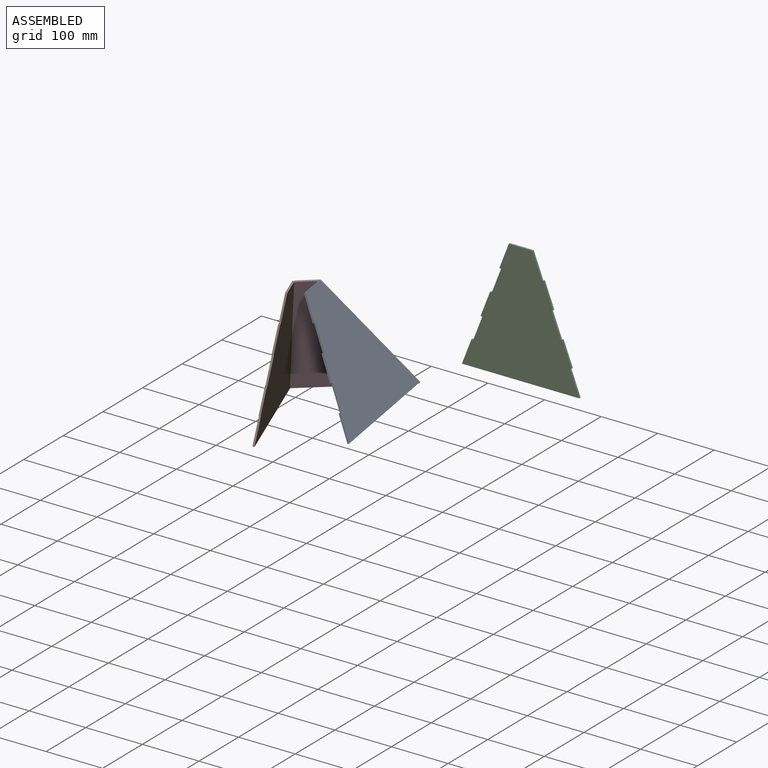
[diagram: assembled view]
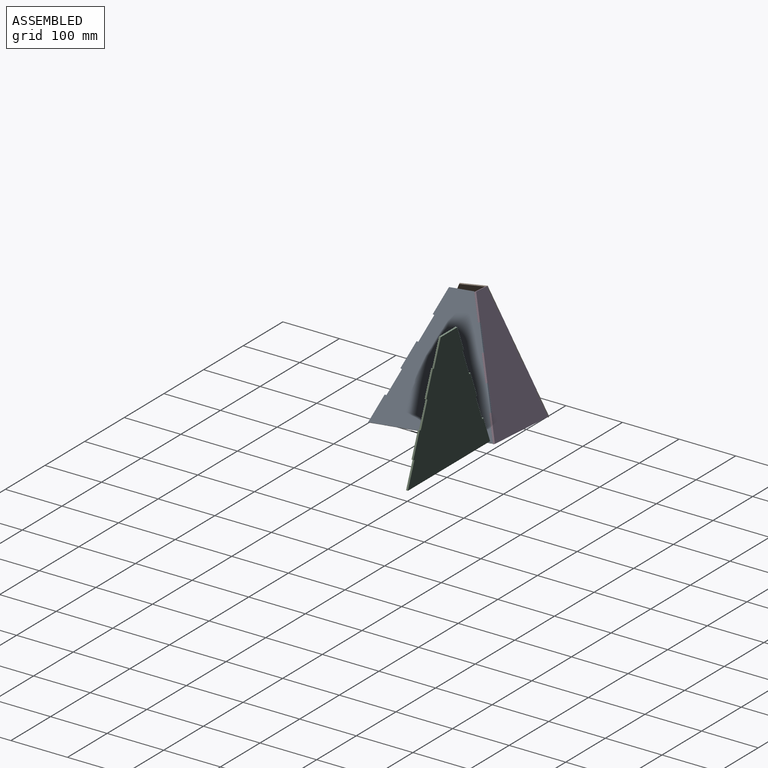
[diagram: assembled view, second angle]
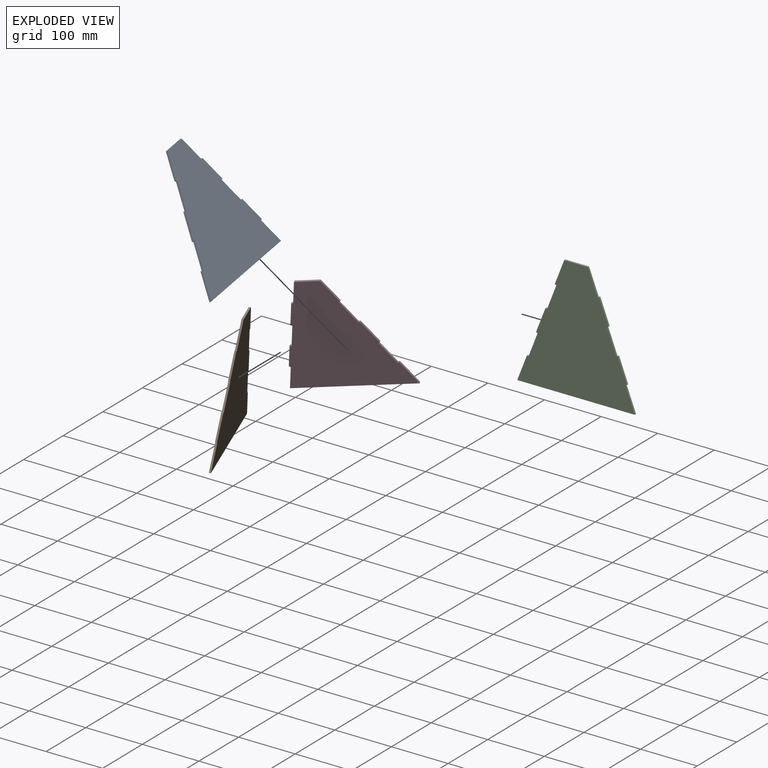
[diagram: exploded view]
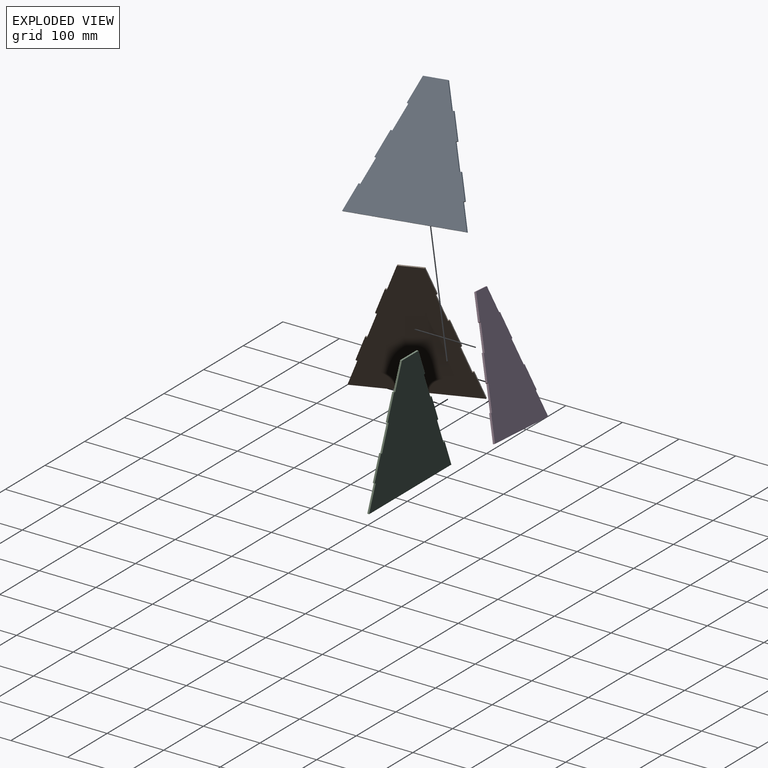
[diagram: exploded view, second angle]
ASSEMBLY  parts=4 mates=2
PART A: 22 faces, bbox 207.5x3.2x213.5 mm
  f0: plane 3.18x2.76mm, normal (-0.36,0,0.93), area 9.4mm2, adj f1,f19,f20,f21
  f1: plane 42.7x16.57mm, normal (0.93,0,0.36), area 145.4mm2, adj f0,f2,f20,f21
  f2: plane 3.18x2.76mm, normal (0.36,0,-0.93), area 9.4mm2, adj f1,f3,f20,f21
  f3: plane 42.7x16.57mm, normal (0.93,0,0.36), area 145.4mm2, adj f2,f4,f20,f21
  f4: plane 3.18x2.76mm, normal (-0.36,0,0.93), area 9.4mm2, adj f3,f5,f20,f21
  f5: plane 43.77x16.99mm, normal (0.93,0,0.36), area 149.1mm2, adj f4,f6,f20,f21
  f6: plane 41.83x3.18mm, normal (0,0,1), area 132.8mm2, adj f5,f7,f20,f21
  f7: plane 42.7x16.57mm, normal (-0.93,0,0.36), area 145.4mm2, adj f6,f8,f20,f21
  f8: plane 3.18x2.76mm, normal (-0.36,0,-0.93), area 9.4mm2, adj f7,f9,f20,f21
  f9: plane 42.7x16.57mm, normal (-0.93,0,0.36), area 145.4mm2, adj f8,f10,f20,f21
  f10: plane 3.18x2.76mm, normal (0.36,0,0.93), area 9.4mm2, adj f9,f11,f20,f21
  f11: plane 42.7x16.57mm, normal (-0.93,0,0.36), area 145.4mm2, adj f10,f12,f20,f21
  f12: plane 3.18x2.76mm, normal (-0.36,0,-0.93), area 9.4mm2, adj f11,f13,f20,f21
  f13: plane 41.63x16.16mm, normal (-0.93,0,0.36), area 141.8mm2, adj f12,f14,f20,f21
  f14: plane 3.18x2.76mm, normal (0.36,0,0.93), area 9.4mm2, adj f13,f15,f20,f21
  f15: plane 43.77x16.99mm, normal (-0.93,0,0.36), area 149.1mm2, adj f14,f16,f20,f21
  f16: plane 207.54x3.18mm, normal (0,0,-1), area 658.9mm2, adj f15,f17,f20,f21
  f17: plane 42.7x16.57mm, normal (0.93,0,0.36), area 145.4mm2, adj f16,f18,f20,f21
  f18: plane 3.18x2.76mm, normal (0.36,0,-0.93), area 9.4mm2, adj f17,f19,f20,f21
  f19: plane 41.63x16.16mm, normal (0.93,0,0.36), area 141.8mm2, adj f0,f18,f20,f21
  f20: plane 213.5x207.54mm, normal (0,-1,0), area 26620mm2, adj f0,f1,f2,f3,f4,f5,f6,f7
  f21: plane 213.5x207.54mm, normal (0,1,0), area 26620mm2, adj f0,f1,f2,f3,f4,f5,f6,f7
PART B: same geometry as A
PART C: same geometry as A
PART D: same geometry as A
PLACE A rot(axis=(-0.21,-0.29,0.93),98.7deg) t=(88.33,-165.61,-45.68)mm
PLACE B rot(axis=(-0.09,0.07,-0.99),69.9deg) t=(-128.08,-0.13,-75.68)mm
PLACE C t=(124.87,73.85,2.64)mm
PLACE D rot(axis=(0.08,0.2,-0.98),165.4deg) t=(70.91,41.08,-31.88)mm
MATE fastened A.f4 <-> D.f8  axis (-0.45,-0.46,0.77) through (-12.7,-41.46,108.72)mm
MATE fastened B.f10 <-> D.f2  axis (0.24,-0.3,0.92) through (-95.74,-43.67,50.59)mm
